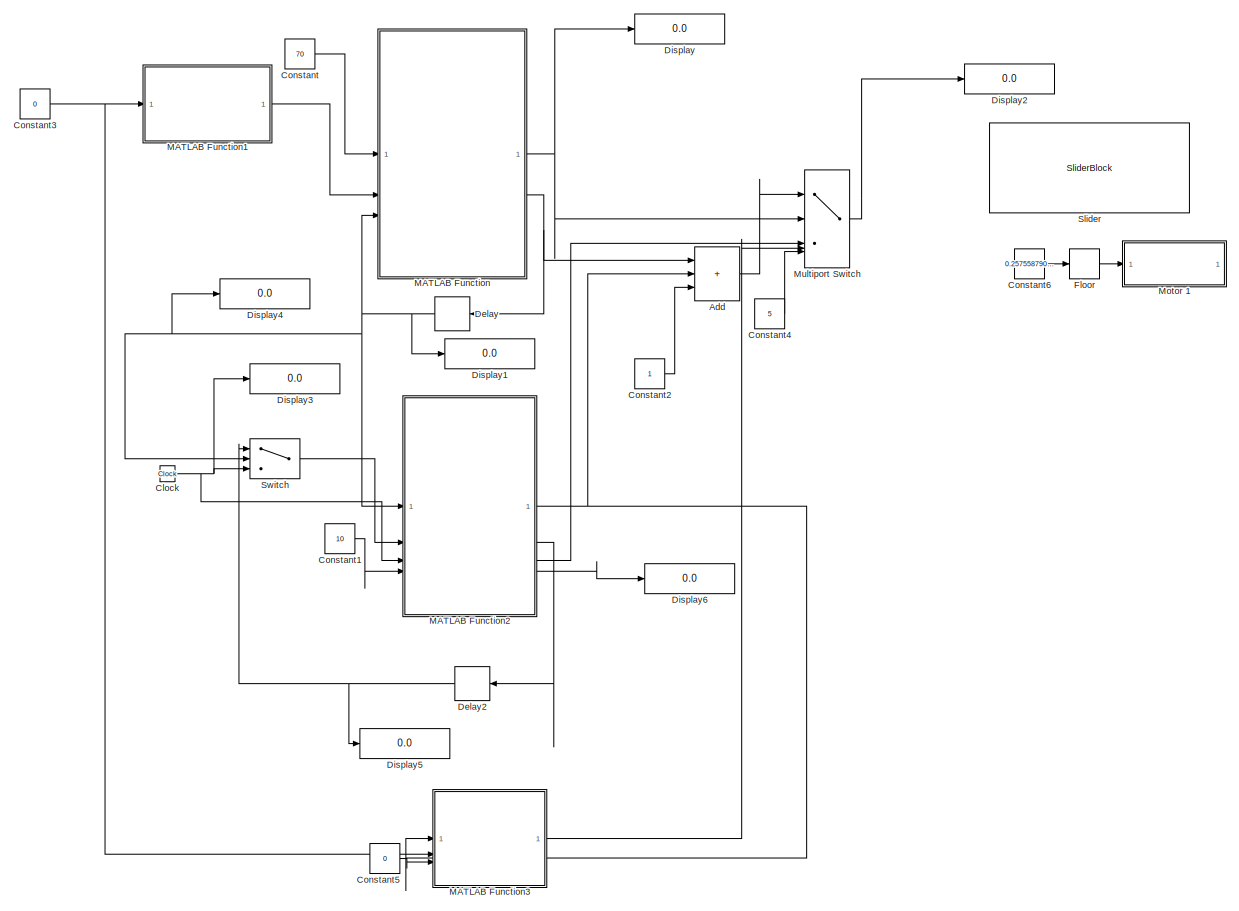
[diagram: root canvas - part 1/2, most of the canvas]
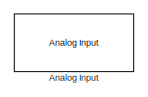
[diagram: root canvas - part 2/2, top left region]
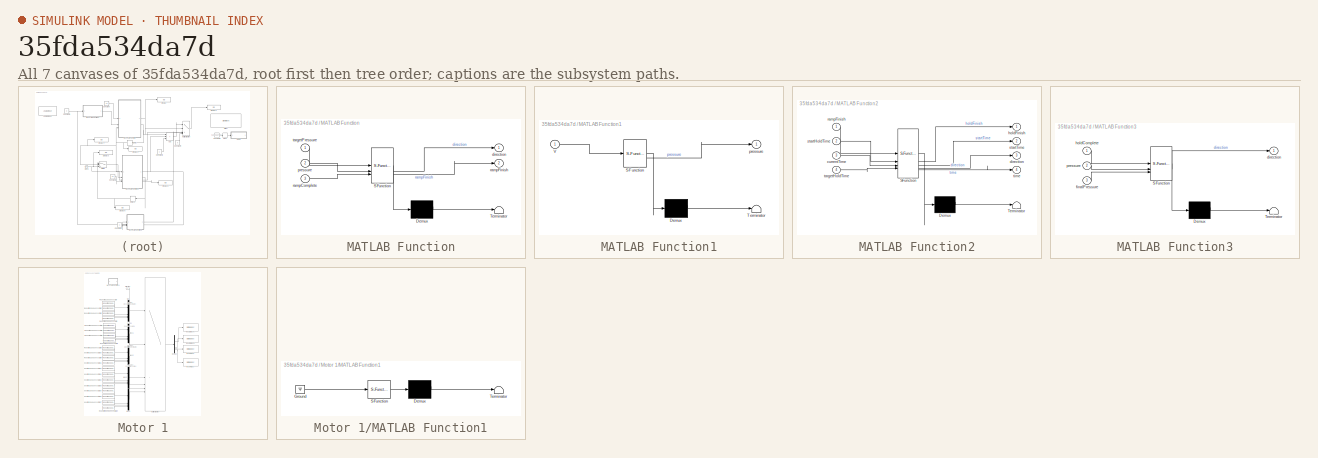
[diagram: thumbnail index - all 7 canvases of the model, root first then tree order]
MODEL slx_35fda534da7d
KIND model
CONFIG AbsTol = auto
CONFIG EnableMultiTasking = off
CONFIG FixedStep = .01
CONFIG MaxStep = auto
CONFIG MinStep = auto
CONFIG RelTol = 1e-3
CONFIG SampleTimeConstraint = Unconstrained
CONFIG SolverName = FixedStepDiscrete
CONFIG StartTime = 0.0
CONFIG StopTime = inf
BLOCK [Sum] Add
  Commented = on
  IconShape = rectangular
  Inputs = +++
BLOCK [Reference] Analog Input  REF=arduinolib/Analog Input
  Commented = on
  LibrarySourceBlock = gizmoLibrary/Arduino Utilities/Analog Input
  SourceBlock = arduinolib/Analog Input
  SourceType = Arduino Analog Input
BLOCK [Clock] Clock
  Commented = on
BLOCK [Constant] Constant
  Commented = on
  Value = 70
BLOCK [Constant] Constant1
  Commented = on
  Value = 10
BLOCK [Constant] Constant2
  Commented = on
BLOCK [Constant] Constant3
  Commented = on
  Value = 0
BLOCK [Constant] Constant4
  Commented = on
  Value = 5
BLOCK [Constant] Constant5
  Commented = on
  Value = 0
BLOCK [Constant] Constant6
  Value = 0.257558790593505
BLOCK [Delay] Delay
  Commented = on
  DelayLength = 1
  InputPortMap = u0
BLOCK [Delay] Delay2
  Commented = on
  DelayLength = 1
  InputPortMap = u0
BLOCK [Display] Display
  Commented = on
  Decimation = 1
BLOCK [Display] Display1
  Commented = on
  Decimation = 1
BLOCK [Display] Display2
  Decimation = 1
BLOCK [Display] Display3
  Commented = on
  Decimation = 1
BLOCK [Display] Display4
  Commented = on
  Decimation = 1
BLOCK [Display] Display5
  Commented = on
  Decimation = 1
BLOCK [Display] Display6
  Commented = on
  Decimation = 1
BLOCK [Rounding] Floor
BLOCK [SubSystem] MATLAB Function
  Commented = on
  ErrorFcn = Stateflow.Translate.translate
  PermitHierarchicalResolution = ExplicitOnly
  SFBlockType = MATLAB Function
  TreatAsAtomicUnit = on
BLOCK [Demux] MATLAB Function/ Demux 
  Outputs = 1
BLOCK [S-Function] MATLAB Function/ SFunction 
  EnableBusSupport = off
  FunctionName = sf_sfun
  PortCounts = [3 3]
  SFcnIsStateOwnerBlock = off
  SFunctionDeploymentMode = off
  Tag = Stateflow S-Function 4
BLOCK [Terminator] MATLAB Function/ Terminator 
BLOCK [Outport] MATLAB Function/direction
BLOCK [Inport] MATLAB Function/pressure
  Port = 2
BLOCK [Inport] MATLAB Function/rampComplete
  Port = 3
BLOCK [Outport] MATLAB Function/rampFinish
  Port = 2
BLOCK [Inport] MATLAB Function/targetPressure
BLOCK [SubSystem] MATLAB Function1
  Commented = on
  ErrorFcn = Stateflow.Translate.translate
  PermitHierarchicalResolution = ExplicitOnly
  SFBlockType = MATLAB Function
  TreatAsAtomicUnit = on
BLOCK [Demux] MATLAB Function1/ Demux 
  Outputs = 1
BLOCK [S-Function] MATLAB Function1/ SFunction 
  EnableBusSupport = off
  FunctionName = sf_sfun
  PortCounts = [1 2]
  SFcnIsStateOwnerBlock = off
  SFunctionDeploymentMode = off
  Tag = Stateflow S-Function 5
BLOCK [Terminator] MATLAB Function1/ Terminator 
BLOCK [Inport] MATLAB Function1/V
BLOCK [Outport] MATLAB Function1/pressure
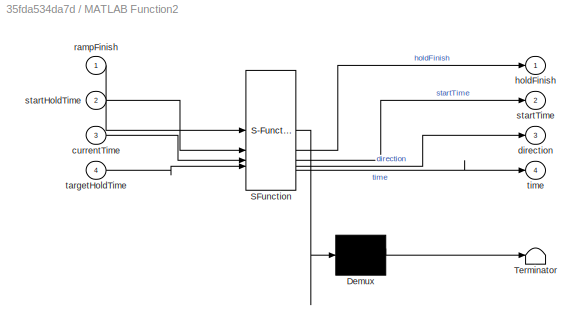
BLOCK [SubSystem] MATLAB Function2
  Commented = on
  ErrorFcn = Stateflow.Translate.translate
  PermitHierarchicalResolution = ExplicitOnly
  SFBlockType = MATLAB Function
  TreatAsAtomicUnit = on
BLOCK [Demux] MATLAB Function2/ Demux 
  Outputs = 1
BLOCK [S-Function] MATLAB Function2/ SFunction 
  EnableBusSupport = off
  FunctionName = sf_sfun
  PortCounts = [4 5]
  SFcnIsStateOwnerBlock = off
  SFunctionDeploymentMode = off
  Tag = Stateflow S-Function 2
BLOCK [Terminator] MATLAB Function2/ Terminator 
BLOCK [Inport] MATLAB Function2/currentTime
  Port = 3
BLOCK [Outport] MATLAB Function2/direction
  Port = 3
BLOCK [Outport] MATLAB Function2/holdFinish
BLOCK [Inport] MATLAB Function2/rampFinish
BLOCK [Inport] MATLAB Function2/startHoldTime
  Port = 2
BLOCK [Outport] MATLAB Function2/startTime
  Port = 2
BLOCK [Inport] MATLAB Function2/targetHoldTime
  Port = 4
BLOCK [Outport] MATLAB Function2/time
  Port = 4
BLOCK [SubSystem] MATLAB Function3
  Commented = on
  ErrorFcn = Stateflow.Translate.translate
  NameLocation = right
  PermitHierarchicalResolution = ExplicitOnly
  SFBlockType = MATLAB Function
  TreatAsAtomicUnit = on
BLOCK [Demux] MATLAB Function3/ Demux 
  Outputs = 1
BLOCK [S-Function] MATLAB Function3/ SFunction 
  EnableBusSupport = off
  FunctionName = sf_sfun
  PortCounts = [3 2]
  SFcnIsStateOwnerBlock = off
  SFunctionDeploymentMode = off
  Tag = Stateflow S-Function 3
BLOCK [Terminator] MATLAB Function3/ Terminator 
BLOCK [Outport] MATLAB Function3/direction
BLOCK [Inport] MATLAB Function3/finalPressure
  Port = 3
BLOCK [Inport] MATLAB Function3/holdComplete
BLOCK [Inport] MATLAB Function3/pressure
  Port = 2
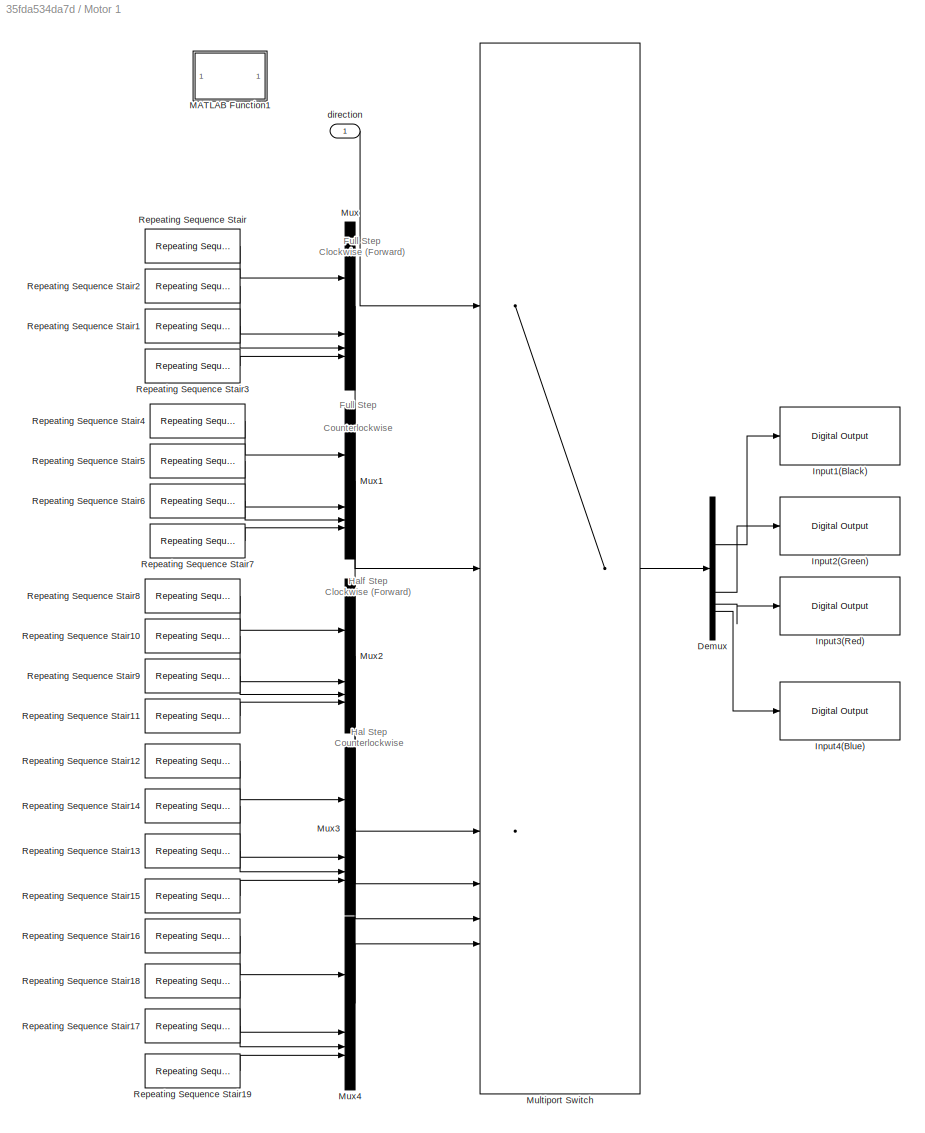
BLOCK [SubSystem] Motor 1
BLOCK [Demux] Motor 1/Demux
BLOCK [Reference] Motor 1/Input1(Black)  REF=arduinolib/Digital Output
  LibrarySourceBlock = gizmoLibrary/Arduino Utilities/Digital Output
  SourceBlock = arduinolib/Digital Output
  SourceType = Arduino Digital Output
BLOCK [Reference] Motor 1/Input2(Green)  REF=arduinolib/Digital Output
  LibrarySourceBlock = gizmoLibrary/Arduino Utilities/Digital Output
  SourceBlock = arduinolib/Digital Output
  SourceType = Arduino Digital Output
BLOCK [Reference] Motor 1/Input3(Red)  REF=arduinolib/Digital Output
  LibrarySourceBlock = gizmoLibrary/Arduino Utilities/Digital Output
  SourceBlock = arduinolib/Digital Output
  SourceType = Arduino Digital Output
BLOCK [Reference] Motor 1/Input4(Blue)  REF=arduinolib/Digital Output
  LibrarySourceBlock = gizmoLibrary/Arduino Utilities/Digital Output
  SourceBlock = arduinolib/Digital Output
  SourceType = Arduino Digital Output
BLOCK [SubSystem] Motor 1/MATLAB Function1
  Commented = on
  ErrorFcn = Stateflow.Translate.translate
  PermitHierarchicalResolution = ExplicitOnly
  SFBlockType = MATLAB Function
  TreatAsAtomicUnit = on
BLOCK [Demux] Motor 1/MATLAB Function1/ Demux 
  Outputs = 1
BLOCK [Ground] Motor 1/MATLAB Function1/ Ground 
BLOCK [S-Function] Motor 1/MATLAB Function1/ SFunction 
  EnableBusSupport = off
  FunctionName = sf_sfun
  PortCounts = [1 1]
  SFcnIsStateOwnerBlock = off
  SFunctionDeploymentMode = off
  Tag = Stateflow S-Function 1
BLOCK [Terminator] Motor 1/MATLAB Function1/ Terminator 
BLOCK [MultiPortSwitch] Motor 1/Multiport Switch
  InputSameDT = off
  Inputs = 5
  SaturateOnIntegerOverflow = off
BLOCK [Mux] Motor 1/Mux
  DisplayOption = bar
BLOCK [Mux] Motor 1/Mux1
  DisplayOption = bar
BLOCK [Mux] Motor 1/Mux2
  DisplayOption = bar
BLOCK [Mux] Motor 1/Mux3
  DisplayOption = bar
  NameLocation = left
BLOCK [Mux] Motor 1/Mux4
  DisplayOption = bar
  NameLocation = left
BLOCK [Reference] Motor 1/Repeating Sequence Stair  REF=simulink/Sources/Repeating
Sequence
Stair
  SourceBlock = simulink/Sources/Repeating\nSequence\nStair
  SourceType = Repeating Sequence Stair
BLOCK [Reference] Motor 1/Repeating Sequence Stair1  REF=simulink/Sources/Repeating
Sequence
Stair
  SourceBlock = simulink/Sources/Repeating\nSequence\nStair
  SourceType = Repeating Sequence Stair
BLOCK [Reference] Motor 1/Repeating Sequence Stair10  REF=simulink/Sources/Repeating
Sequence
Stair
  SourceBlock = simulink/Sources/Repeating\nSequence\nStair
  SourceType = Repeating Sequence Stair
BLOCK [Reference] Motor 1/Repeating Sequence Stair11  REF=simulink/Sources/Repeating
Sequence
Stair
  SourceBlock = simulink/Sources/Repeating\nSequence\nStair
  SourceType = Repeating Sequence Stair
BLOCK [Reference] Motor 1/Repeating Sequence Stair12  REF=simulink/Sources/Repeating
Sequence
Stair
  SourceBlock = simulink/Sources/Repeating\nSequence\nStair
  SourceType = Repeating Sequence Stair
BLOCK [Reference] Motor 1/Repeating Sequence Stair13  REF=simulink/Sources/Repeating
Sequence
Stair
  SourceBlock = simulink/Sources/Repeating\nSequence\nStair
  SourceType = Repeating Sequence Stair
BLOCK [Reference] Motor 1/Repeating Sequence Stair14  REF=simulink/Sources/Repeating
Sequence
Stair
  SourceBlock = simulink/Sources/Repeating\nSequence\nStair
  SourceType = Repeating Sequence Stair
BLOCK [Reference] Motor 1/Repeating Sequence Stair15  REF=simulink/Sources/Repeating
Sequence
Stair
  SourceBlock = simulink/Sources/Repeating\nSequence\nStair
  SourceType = Repeating Sequence Stair
BLOCK [Reference] Motor 1/Repeating Sequence Stair16  REF=simulink/Sources/Repeating
Sequence
Stair
  SourceBlock = simulink/Sources/Repeating\nSequence\nStair
  SourceType = Repeating Sequence Stair
BLOCK [Reference] Motor 1/Repeating Sequence Stair17  REF=simulink/Sources/Repeating
Sequence
Stair
  SourceBlock = simulink/Sources/Repeating\nSequence\nStair
  SourceType = Repeating Sequence Stair
BLOCK [Reference] Motor 1/Repeating Sequence Stair18  REF=simulink/Sources/Repeating
Sequence
Stair
  SourceBlock = simulink/Sources/Repeating\nSequence\nStair
  SourceType = Repeating Sequence Stair
BLOCK [Reference] Motor 1/Repeating Sequence Stair19  REF=simulink/Sources/Repeating
Sequence
Stair
  SourceBlock = simulink/Sources/Repeating\nSequence\nStair
  SourceType = Repeating Sequence Stair
BLOCK [Reference] Motor 1/Repeating Sequence Stair2  REF=simulink/Sources/Repeating
Sequence
Stair
  SourceBlock = simulink/Sources/Repeating\nSequence\nStair
  SourceType = Repeating Sequence Stair
BLOCK [Reference] Motor 1/Repeating Sequence Stair3  REF=simulink/Sources/Repeating
Sequence
Stair
  SourceBlock = simulink/Sources/Repeating\nSequence\nStair
  SourceType = Repeating Sequence Stair
BLOCK [Reference] Motor 1/Repeating Sequence Stair4  REF=simulink/Sources/Repeating
Sequence
Stair
  SourceBlock = simulink/Sources/Repeating\nSequence\nStair
  SourceType = Repeating Sequence Stair
BLOCK [Reference] Motor 1/Repeating Sequence Stair5  REF=simulink/Sources/Repeating
Sequence
Stair
  SourceBlock = simulink/Sources/Repeating\nSequence\nStair
  SourceType = Repeating Sequence Stair
BLOCK [Reference] Motor 1/Repeating Sequence Stair6  REF=simulink/Sources/Repeating
Sequence
Stair
  SourceBlock = simulink/Sources/Repeating\nSequence\nStair
  SourceType = Repeating Sequence Stair
BLOCK [Reference] Motor 1/Repeating Sequence Stair7  REF=simulink/Sources/Repeating
Sequence
Stair
  SourceBlock = simulink/Sources/Repeating\nSequence\nStair
  SourceType = Repeating Sequence Stair
BLOCK [Reference] Motor 1/Repeating Sequence Stair8  REF=simulink/Sources/Repeating
Sequence
Stair
  NameLocation = top
  SourceBlock = simulink/Sources/Repeating\nSequence\nStair
  SourceType = Repeating Sequence Stair
BLOCK [Reference] Motor 1/Repeating Sequence Stair9  REF=simulink/Sources/Repeating
Sequence
Stair
  SourceBlock = simulink/Sources/Repeating\nSequence\nStair
  SourceType = Repeating Sequence Stair
BLOCK [Inport] Motor 1/direction
BLOCK [MultiPortSwitch] Multiport Switch
  Commented = on
  InputSameDT = off
  Inputs = 4
  SaturateOnIntegerOverflow = off
BLOCK [SliderBlock] Slider
  ScaleMax = 5
  TickInterval = 1
BLOCK [Switch] Switch
  Commented = on
  Criteria = u2 > Threshold
  InputSameDT = off
  SaturateOnIntegerOverflow = off
ANNOTATION Motor 1: Full Step Clockwise (Forward)
ANNOTATION Motor 1: Half Step Clockwise (Forward)
ANNOTATION Motor 1: Full Step Counterlockwise
ANNOTATION Motor 1: Hal Step Counterlockwise
LINE Add:1 -> Multiport Switch:1
NET Clock:1 -> Display3:1, MATLAB Function2:3, Switch:3
LINE Constant1:1 -> MATLAB Function2:4
LINE Constant2:1 -> Add:3
NET Constant3:1 -> MATLAB Function1:1, MATLAB Function3:2
LINE Constant4:1 -> Multiport Switch:5
LINE Constant5:1 -> MATLAB Function3:3
LINE Constant6:1 -> Floor:1
LINE Constant:1 -> MATLAB Function:1
NET Delay2:1 -> Display5:1, Switch:1
NET Delay:1 -> Display1:1, Display4:1, MATLAB Function2:1, MATLAB Function:3, Switch:2
LINE Floor:1 -> Motor 1:1
LINE MATLAB Function1:1 -> MATLAB Function:2
NET MATLAB Function2:1 -> Add:2, MATLAB Function3:1
LINE MATLAB Function2:2 -> Delay2:1
LINE MATLAB Function2:3 -> Multiport Switch:3
LINE MATLAB Function2:4 -> Display6:1
LINE MATLAB Function3:1 -> Multiport Switch:4
NET MATLAB Function:1 -> Display:1, Multiport Switch:2
NET MATLAB Function:2 -> Add:1, Delay:1
LINE Motor 1/Demux:1 -> Motor 1/Input1(Black):1
LINE Motor 1/Demux:2 -> Motor 1/Input2(Green):1
LINE Motor 1/Demux:3 -> Motor 1/Input3(Red):1
LINE Motor 1/Demux:4 -> Motor 1/Input4(Blue):1
LINE Motor 1/Multiport Switch:1 -> Motor 1/Demux:1
LINE Motor 1/Mux1:1 -> Motor 1/Multiport Switch:3
LINE Motor 1/Mux2:1 -> Motor 1/Multiport Switch:4
LINE Motor 1/Mux3:1 -> Motor 1/Multiport Switch:5
LINE Motor 1/Mux4:1 -> Motor 1/Multiport Switch:6
LINE Motor 1/Mux:1 -> Motor 1/Multiport Switch:2
LINE Motor 1/Repeating Sequence Stair10:1 -> Motor 1/Mux2:2
LINE Motor 1/Repeating Sequence Stair11:1 -> Motor 1/Mux2:4
LINE Motor 1/Repeating Sequence Stair12:1 -> Motor 1/Mux3:1
LINE Motor 1/Repeating Sequence Stair13:1 -> Motor 1/Mux3:3
LINE Motor 1/Repeating Sequence Stair14:1 -> Motor 1/Mux3:2
LINE Motor 1/Repeating Sequence Stair15:1 -> Motor 1/Mux3:4
LINE Motor 1/Repeating Sequence Stair16:1 -> Motor 1/Mux4:1
LINE Motor 1/Repeating Sequence Stair17:1 -> Motor 1/Mux4:3
LINE Motor 1/Repeating Sequence Stair18:1 -> Motor 1/Mux4:2
LINE Motor 1/Repeating Sequence Stair19:1 -> Motor 1/Mux4:4
LINE Motor 1/Repeating Sequence Stair1:1 -> Motor 1/Mux:3
LINE Motor 1/Repeating Sequence Stair2:1 -> Motor 1/Mux:2
LINE Motor 1/Repeating Sequence Stair3:1 -> Motor 1/Mux:4
LINE Motor 1/Repeating Sequence Stair4:1 -> Motor 1/Mux1:1
LINE Motor 1/Repeating Sequence Stair5:1 -> Motor 1/Mux1:2
LINE Motor 1/Repeating Sequence Stair6:1 -> Motor 1/Mux1:3
LINE Motor 1/Repeating Sequence Stair7:1 -> Motor 1/Mux1:4
LINE Motor 1/Repeating Sequence Stair8:1 -> Motor 1/Mux2:1
LINE Motor 1/Repeating Sequence Stair9:1 -> Motor 1/Mux2:3
LINE Motor 1/Repeating Sequence Stair:1 -> Motor 1/Mux:1
LINE Motor 1/direction:1 -> Motor 1/Multiport Switch:1
LINE Multiport Switch:1 -> Display2:1
LINE Switch:1 -> MATLAB Function2:2
note: NET lines group one-source signal fan-out (src -> all destinations, sorted); 1:1 wires keep LINE
CHART Motor 1/MATLAB Function1 states=1 transitions=1
  STATE_LABEL 'eML_blk_kernel()'
  STATE_LABEL "SCRIPT:\nfunction resistorPullup()\na = arduino();\nconfigurePin(a,'D18','pullup');\nconfigurePin(a,'D19','pullup');\nconfigurePin(a,'D2','pullup');\nconfigurePin(a,'D3','pullup');"
CHART MATLAB Function2 states=1 transitions=1
  STATE_LABEL 'eML_blk_kernel()'
  STATE_LABEL 'SCRIPT:\nfunction [holdFinish, startTime, direction, time]= hold(rampFinish, startHoldTime, currentTime, targetHoldTime)\nstartTime = startHoldTime;\ndirection = 5;\nif (currentTime - startTime < targetHoldTime && rampFinish)\n    holdFinish = 0;\n    \nelseif(currentTime-startTime > targetHoldTime && rampFinish)\n    holdFinish = 1;\nelse\n    holdFinish = 0;\nend\ntime = currentTime-startTime;\n\n'
CHART MATLAB Function3 states=1 transitions=1
  STATE_LABEL 'eML_blk_kernel()'
  STATE_LABEL 'SCRIPT:\nfunction direction = rampDown(holdComplete, pressure, finalPressure)\n\nif(holdComplete && pressure>finalPressure)\n    direction = 2;\nelse\n    direction = 5;\nend\n'
CHART MATLAB Function states=1 transitions=1
  STATE_LABEL 'eML_blk_kernel()'
  STATE_LABEL 'SCRIPT:\nfunction [direction, rampFinish]= rampUp(targetPressure, pressure, rampComplete)\nif(~rampComplete)\n    if pressure < targetPressure\n        direction = 3;\n        rampFinish = 0;\n    \n    elseif pressure >= targetPressure\n        direction = 5;\n        rampFinish = 1;\n    \n    else\n        direction = 5;\n        rampFinish = 1;\n   \n    end\n\n\n\nelse\n    direction = 5;\n    rampFinish = 1;\n   ...<+4ch>'
CHART MATLAB Function1 states=1 transitions=1
  STATE_LABEL 'eML_blk_kernel()'
  STATE_LABEL 'SCRIPT:\nfunction pressure = fcn(V)\n\npressure = V*1;\n'
CHART  states=0 transitions=0
CHART  states=0 transitions=0
CHART  states=0 transitions=0
CHART  states=0 transitions=0
CHART  states=0 transitions=0
